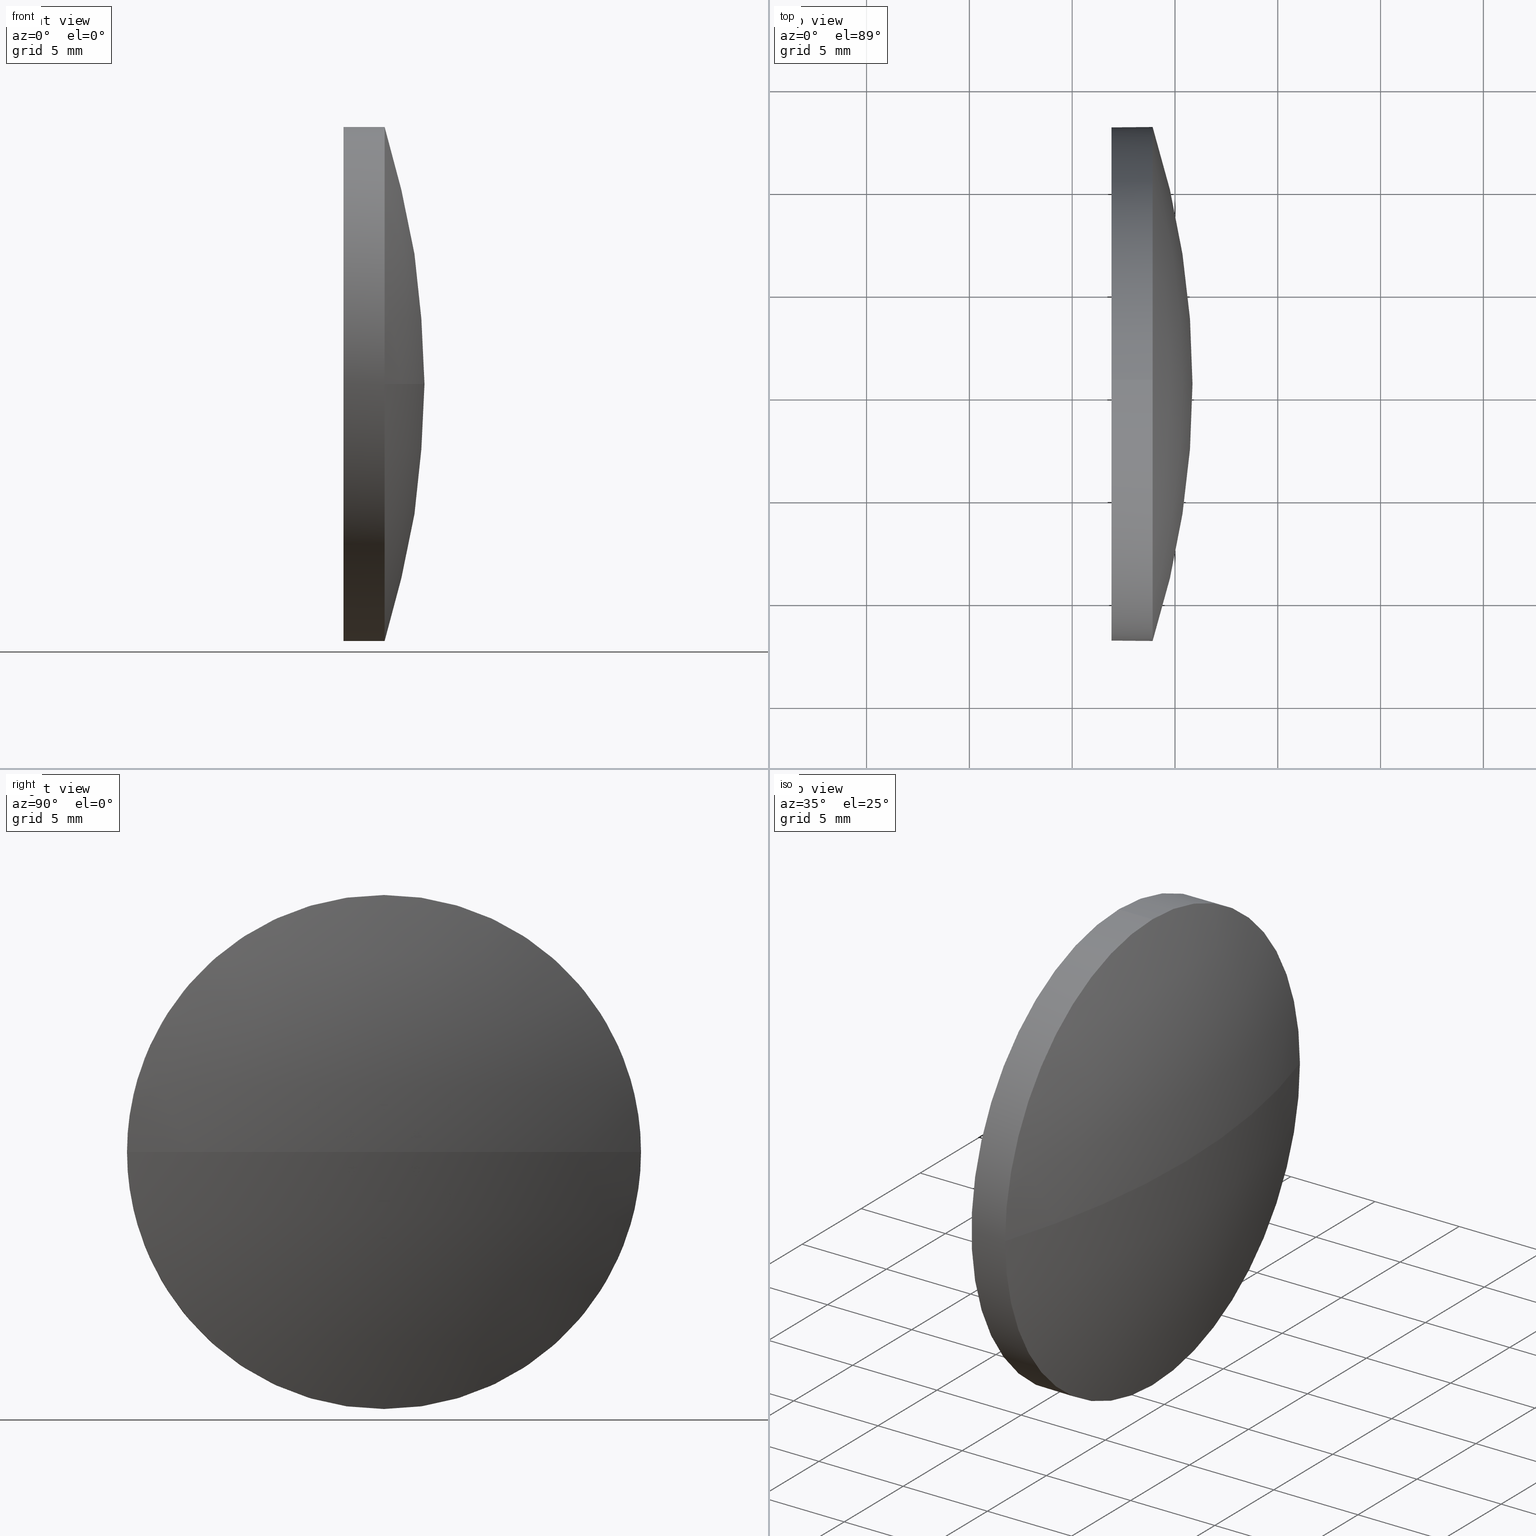
[diagram: canonical four-view strip — front | top / right | iso, engineering-drawing reading convention]
A machine part, canonical four-view strip (front | top / right | iso — engineering-drawing reading convention). The complete STEP part file that produces these views, byte-faithful:
ISO-10303-21;
HEADER;
FILE_DESCRIPTION (( 'STEP AP214' ),
    '1' );
FILE_NAME ('100215.STEP',
    '2019-05-23T09:01:44',
    ( '' ),
    ( '' ),
    'SwSTEP 2.0',
    'SolidWorks 2016',
    '' );
FILE_SCHEMA (( 'AUTOMOTIVE_DESIGN' ));
ENDSEC;

DATA;
#1 = PRODUCT_DEFINITION_CONTEXT ( 'detailed design', #93, 'design' ) ;
#2 = ORIENTED_EDGE ( 'NONE', *, *, #59, .F. ) ;
#3 = DIRECTION ( 'NONE',  ( 0.0000000000000000000, 0.0000000000000000000, 1.000000000000000000 ) ) ;
#4 = AXIS2_PLACEMENT_3D ( 'NONE', #119, #23, #65 ) ;
#5 = DIRECTION ( 'NONE',  ( -1.000000000000000000, -0.0000000000000000000, -0.0000000000000000000 ) ) ;
#6 = CARTESIAN_POINT ( 'NONE',  ( 691.9125718572777300, 125.5543078984230900, 0.0000000000000000000 ) ) ;
#7 = CIRCLE ( 'NONE', #129, 12.49999999999998400 ) ;
#8 = DIRECTION ( 'NONE',  ( 0.0000000000000000000, 0.0000000000000000000, 1.000000000000000000 ) ) ;
#9 = PRODUCT_DEFINITION_FORMATION_WITH_SPECIFIED_SOURCE ( '�κ�', '', #172, .NOT_KNOWN. ) ;
#10 = DIRECTION ( 'NONE',  ( 0.0000000000000000000, 0.0000000000000000000, 1.000000000000000000 ) ) ;
#11 = DIRECTION ( 'NONE',  ( -1.000000000000000000, -0.0000000000000000000, -0.0000000000000000000 ) ) ;
#12 =( GEOMETRIC_REPRESENTATION_CONTEXT ( 3 ) GLOBAL_UNCERTAINTY_ASSIGNED_CONTEXT ( ( #163 ) ) GLOBAL_UNIT_ASSIGNED_CONTEXT ( ( #69, #166, #135 ) ) REPRESENTATION_CONTEXT ( 'NONE', 'WORKASPACE' ) );
#13 = DIRECTION ( 'NONE',  ( -1.000000000000000000, -0.0000000000000000000, -0.0000000000000000000 ) ) ;
#14 = EDGE_CURVE ( 'NONE', #173, #159, #7, .T. ) ;
#15 = CIRCLE ( 'NONE', #98, 12.49999999999998400 ) ;
#16 = CIRCLE ( 'NONE', #99, 12.49999999999998400 ) ;
#17 = LINE ( 'NONE', #90, #165 ) ;
#18 = SURFACE_STYLE_FILL_AREA ( #109 ) ;
#19 = AXIS2_PLACEMENT_3D ( 'NONE', #179, #96, #140 ) ;
#20 = CARTESIAN_POINT ( 'NONE',  ( 693.9125718572777300, 125.5543078984230900, 0.0000000000000000000 ) ) ;
#21 = ORIENTED_EDGE ( 'NONE', *, *, #34, .T. ) ;
#22 = DIRECTION ( 'NONE',  ( -1.000000000000000000, -0.0000000000000000000, -0.0000000000000000000 ) ) ;
#23 = DIRECTION ( 'NONE',  ( 0.0000000000000000000, 1.224646799147353200E-016, -1.000000000000000000 ) ) ;
#24 = ADVANCED_FACE ( 'NONE', ( #46 ), #158, .T. ) ;
#25 = ORIENTED_EDGE ( 'NONE', *, *, #14, .T. ) ;
#26 = CARTESIAN_POINT ( 'NONE',  ( 695.8525718572777800, 125.5543078984230900, 0.0000000000000000000 ) ) ;
#27 = CARTESIAN_POINT ( 'NONE',  ( 693.9125718572777300, 125.5543078984230900, 12.49999999999998400 ) ) ;
#28 = VERTEX_POINT ( 'NONE', #117 ) ;
#29 =( NAMED_UNIT ( * ) PLANE_ANGLE_UNIT ( ) SI_UNIT ( $, .RADIAN. ) );
#30 = SURFACE_SIDE_STYLE ('',( #35 ) ) ;
#31 = STYLED_ITEM ( 'NONE', ( #78 ), #127 ) ;
#32 = ORIENTED_EDGE ( 'NONE', *, *, #85, .F. ) ;
#33 = AXIS2_PLACEMENT_3D ( 'NONE', #56, #11, #68 ) ;
#34 = EDGE_CURVE ( 'NONE', #159, #173, #15, .T. ) ;
#35 = SURFACE_STYLE_FILL_AREA ( #110 ) ;
#36 = ORIENTED_EDGE ( 'NONE', *, *, #45, .T. ) ;
#37 = CARTESIAN_POINT ( 'NONE',  ( 654.6119533005767200, 125.5543078984230900, 0.0000000000000000000 ) ) ;
#38 = CIRCLE ( 'NONE', #33, 12.49999999999998400 ) ;
#39 = CARTESIAN_POINT ( 'NONE',  ( 654.6119533005767200, 125.5543078984230900, 0.0000000000000000000 ) ) ;
#40 = EDGE_LOOP ( 'NONE', ( #21, #25 ) ) ;
#41 = ORIENTED_EDGE ( 'NONE', *, *, #14, .F. ) ;
#42 = APPLICATION_PROTOCOL_DEFINITION ( 'draft international standard', 'automotive_design', 1998, #93 ) ;
#43 = APPLICATION_CONTEXT ( 'automotive_design' ) ;
#44 = SURFACE_STYLE_USAGE ( .BOTH. , #30 ) ;
#45 = EDGE_CURVE ( 'NONE', #130, #173, #132, .T. ) ;
#46 = FACE_OUTER_BOUND ( 'NONE', #150, .T. ) ;
#47 = AXIS2_PLACEMENT_3D ( 'NONE', #167, #152, #52 ) ;
#48 = EDGE_LOOP ( 'NONE', ( #157, #58, #184, #142, #41 ) ) ;
#49 = ADVANCED_FACE ( 'NONE', ( #107 ), #60, .T. ) ;
#50 = EDGE_CURVE ( 'NONE', #112, #159, #17, .T. ) ;
#51 = PRODUCT_DEFINITION ( 'δ֪', '', #9, #1 ) ;
#52 = DIRECTION ( 'NONE',  ( 0.0000000000000000000, 0.0000000000000000000, 1.000000000000000000 ) ) ;
#53 = DIRECTION ( 'NONE',  ( 0.0000000000000000000, 0.0000000000000000000, -1.000000000000000000 ) ) ;
#54 = AXIS2_PLACEMENT_3D ( 'NONE', #121, #13, #123 ) ;
#55 =( LENGTH_UNIT ( ) NAMED_UNIT ( * ) SI_UNIT ( .MILLI., .METRE. ) );
#56 = CARTESIAN_POINT ( 'NONE',  ( 693.9125718572777300, 125.5543078984230900, 0.0000000000000000000 ) ) ;
#57 = MECHANICAL_DESIGN_GEOMETRIC_PRESENTATION_REPRESENTATION (  '', ( #31 ), #164 ) ;
#58 = ORIENTED_EDGE ( 'NONE', *, *, #85, .T. ) ;
#59 = EDGE_CURVE ( 'NONE', #178, #101, #124, .T. ) ;
#60 = CYLINDRICAL_SURFACE ( 'NONE', #151, 12.49999999999998400 ) ;
#61 = EDGE_CURVE ( 'NONE', #178, #28, #115, .T. ) ;
#62 = CLOSED_SHELL ( 'NONE', ( #49, #24, #89, #144, #145 ) ) ;
#63 = DIRECTION ( 'NONE',  ( -1.000000000000000000, -0.0000000000000000000, -0.0000000000000000000 ) ) ;
#64 = UNCERTAINTY_MEASURE_WITH_UNIT (LENGTH_MEASURE( 1.000000000000000100E-005 ), #95, 'distance_accuracy_value', 'NONE');
#65 = DIRECTION ( 'NONE',  ( 0.0000000000000000000, 1.000000000000000000, 1.224646799147353200E-016 ) ) ;
#66 = AXIS2_PLACEMENT_3D ( 'NONE', #20, #71, #10 ) ;
#67 = CARTESIAN_POINT ( 'NONE',  ( 691.9125718572777300, 125.5543078984230900, 0.0000000000000000000 ) ) ;
#68 = DIRECTION ( 'NONE',  ( 0.0000000000000000000, 0.0000000000000000000, 1.000000000000000000 ) ) ;
#69 =( LENGTH_UNIT ( ) NAMED_UNIT ( * ) SI_UNIT ( .MILLI., .METRE. ) );
#70 = FACE_OUTER_BOUND ( 'NONE', #113, .T. ) ;
#71 = DIRECTION ( 'NONE',  ( -1.000000000000000000, -0.0000000000000000000, -0.0000000000000000000 ) ) ;
#72 = EDGE_CURVE ( 'NONE', #101, #130, #100, .T. ) ;
#73 = COLOUR_RGB ( '',1.000000000000000000, 1.000000000000000000, 1.000000000000000000 ) ;
#74 = EDGE_LOOP ( 'NONE', ( #141, #36, #106, #171, #76 ) ) ;
#75 = EDGE_CURVE ( 'NONE', #112, #101, #111, .T. ) ;
#76 = ORIENTED_EDGE ( 'NONE', *, *, #75, .T. ) ;
#77 = PRESENTATION_LAYER_ASSIGNMENT (  '', '', ( #31 ) ) ;
#78 = PRESENTATION_STYLE_ASSIGNMENT (( #155 ) ) ;
#79 = DIRECTION ( 'NONE',  ( 1.000000000000000000, 0.0000000000000000000, 0.0000000000000000000 ) ) ;
#80 = ORIENTED_EDGE ( 'NONE', *, *, #72, .F. ) ;
#81 = FILL_AREA_STYLE_COLOUR ( '', #94 ) ;
#82 = CARTESIAN_POINT ( 'NONE',  ( 691.9125718572777300, 125.5543078984230900, 12.49999999999998400 ) ) ;
#83 = AXIS2_PLACEMENT_3D ( 'NONE', #6, #79, #53 ) ;
#84 = CARTESIAN_POINT ( 'NONE',  ( 691.9125718572777300, 125.5543078984230900, -12.49999999999998400 ) ) ;
#85 = EDGE_CURVE ( 'NONE', #130, #28, #38, .T. ) ;
#86 = ORIENTED_EDGE ( 'NONE', *, *, #61, .F. ) ;
#87 = FACE_OUTER_BOUND ( 'NONE', #40, .T. ) ;
#88 = ORIENTED_EDGE ( 'NONE', *, *, #156, .F. ) ;
#89 = ADVANCED_FACE ( 'NONE', ( #70 ), #185, .T. ) ;
#90 = CARTESIAN_POINT ( 'NONE',  ( 689.8834642788407300, 125.5543078984230900, 12.49999999999998400 ) ) ;
#91 = AXIS2_PLACEMENT_3D ( 'NONE', #146, #161, #102 ) ;
#92 = ORIENTED_EDGE ( 'NONE', *, *, #61, .T. ) ;
#93 = APPLICATION_CONTEXT ( 'automotive_design' ) ;
#94 = COLOUR_RGB ( '',1.000000000000000000, 1.000000000000000000, 1.000000000000000000 ) ;
#95 =( LENGTH_UNIT ( ) NAMED_UNIT ( * ) SI_UNIT ( .MILLI., .METRE. ) );
#96 = DIRECTION ( 'NONE',  ( 0.0000000000000000000, 0.0000000000000000000, 1.000000000000000000 ) ) ;
#97 = DIRECTION ( 'NONE',  ( -0.0000000000000000000, 0.0000000000000000000, -1.000000000000000000 ) ) ;
#98 = AXIS2_PLACEMENT_3D ( 'NONE', #147, #22, #3 ) ;
#99 = AXIS2_PLACEMENT_3D ( 'NONE', #137, #154, #8 ) ;
#100 = CIRCLE ( 'NONE', #66, 12.49999999999998400 ) ;
#101 = VERTEX_POINT ( 'NONE', #170 ) ;
#102 = DIRECTION ( 'NONE',  ( 0.0000000000000000000, 1.000000000000000000, 0.0000000000000000000 ) ) ;
#103 = DIRECTION ( 'NONE',  ( 0.0000000000000000000, 0.0000000000000000000, 1.000000000000000000 ) ) ;
#104 = DIRECTION ( 'NONE',  ( -0.0000000000000000000, 0.0000000000000000000, 1.000000000000000000 ) ) ;
#105 =( NAMED_UNIT ( * ) SI_UNIT ( $, .STERADIAN. ) SOLID_ANGLE_UNIT ( ) );
#106 = ORIENTED_EDGE ( 'NONE', *, *, #34, .F. ) ;
#107 = FACE_OUTER_BOUND ( 'NONE', #74, .T. ) ;
#108 = STYLED_ITEM ( 'NONE', ( #133 ), #182 ) ;
#109 = FILL_AREA_STYLE ('',( #81 ) ) ;
#110 = FILL_AREA_STYLE ('',( #138 ) ) ;
#111 = CIRCLE ( 'NONE', #47, 12.49999999999998400 ) ;
#112 = VERTEX_POINT ( 'NONE', #27 ) ;
#113 = EDGE_LOOP ( 'NONE', ( #86, #120, #136, #88 ) ) ;
#114 = UNCERTAINTY_MEASURE_WITH_UNIT (LENGTH_MEASURE( 1.000000000000000100E-005 ), #55, 'distance_accuracy_value', 'NONE');
#115 = CIRCLE ( 'NONE', #4, 41.24061855670099400 ) ;
#116 = PRESENTATION_LAYER_ASSIGNMENT (  '', '', ( #108 ) ) ;
#117 = CARTESIAN_POINT ( 'NONE',  ( 693.9125718572777300, 113.0543078984230600, -1.530808498934194300E-015 ) ) ;
#118 = CARTESIAN_POINT ( 'NONE',  ( 689.8834642788407300, 125.5543078984230900, 0.0000000000000000000 ) ) ;
#119 = CARTESIAN_POINT ( 'NONE',  ( 654.6119533005767200, 125.5543078984230900, 0.0000000000000000000 ) ) ;
#120 = ORIENTED_EDGE ( 'NONE', *, *, #59, .T. ) ;
#121 = CARTESIAN_POINT ( 'NONE',  ( 689.8834642788407300, 125.5543078984230900, 0.0000000000000000000 ) ) ;
#122 = AXIS2_PLACEMENT_3D ( 'NONE', #37, #104, #174 ) ;
#123 = DIRECTION ( 'NONE',  ( 0.0000000000000000000, 0.0000000000000000000, 1.000000000000000000 ) ) ;
#124 = CIRCLE ( 'NONE', #122, 41.24061855670102300 ) ;
#125 = PRODUCT_DEFINITION_SHAPE ( 'NONE', 'NONE',  #51 ) ;
#126 = CYLINDRICAL_SURFACE ( 'NONE', #54, 12.49999999999998400 ) ;
#127 = MANIFOLD_SOLID_BREP ( '��ת1', #62 ) ;
#128 = PRODUCT_RELATED_PRODUCT_CATEGORY ( 'part', '', ( #172 ) ) ;
#129 = AXIS2_PLACEMENT_3D ( 'NONE', #67, #148, #103 ) ;
#130 = VERTEX_POINT ( 'NONE', #177 ) ;
#131 = CARTESIAN_POINT ( 'NONE',  ( 689.8834642788407300, 125.5543078984230900, -12.49999999999998400 ) ) ;
#132 = LINE ( 'NONE', #131, #143 ) ;
#133 = PRESENTATION_STYLE_ASSIGNMENT (( #44 ) ) ;
#134 = DIRECTION ( 'NONE',  ( 0.0000000000000000000, 1.000000000000000000, 0.0000000000000000000 ) ) ;
#135 =( NAMED_UNIT ( * ) SI_UNIT ( $, .STERADIAN. ) SOLID_ANGLE_UNIT ( ) );
#136 = ORIENTED_EDGE ( 'NONE', *, *, #75, .F. ) ;
#137 = CARTESIAN_POINT ( 'NONE',  ( 693.9125718572777300, 125.5543078984230900, 0.0000000000000000000 ) ) ;
#138 = FILL_AREA_STYLE_COLOUR ( '', #73 ) ;
#139 = SHAPE_DEFINITION_REPRESENTATION ( #125, #182 ) ;
#140 = DIRECTION ( 'NONE',  ( 1.000000000000000000, 0.0000000000000000000, 0.0000000000000000000 ) ) ;
#141 = ORIENTED_EDGE ( 'NONE', *, *, #72, .T. ) ;
#142 = ORIENTED_EDGE ( 'NONE', *, *, #50, .T. ) ;
#143 = VECTOR ( 'NONE', #5, 1000.000000000000000 ) ;
#144 = ADVANCED_FACE ( 'NONE', ( #183 ), #126, .T. ) ;
#145 = ADVANCED_FACE ( 'NONE', ( #87 ), #180, .F. ) ;
#146 = CARTESIAN_POINT ( 'NONE',  ( 654.6119533005767200, 125.5543078984230900, 0.0000000000000000000 ) ) ;
#147 = CARTESIAN_POINT ( 'NONE',  ( 691.9125718572777300, 125.5543078984230900, 0.0000000000000000000 ) ) ;
#148 = DIRECTION ( 'NONE',  ( -1.000000000000000000, -0.0000000000000000000, -0.0000000000000000000 ) ) ;
#149 =( NAMED_UNIT ( * ) SI_UNIT ( $, .STERADIAN. ) SOLID_ANGLE_UNIT ( ) );
#150 = EDGE_LOOP ( 'NONE', ( #2, #92, #32, #80 ) ) ;
#151 = AXIS2_PLACEMENT_3D ( 'NONE', #118, #63, #162 ) ;
#152 = DIRECTION ( 'NONE',  ( -1.000000000000000000, -0.0000000000000000000, -0.0000000000000000000 ) ) ;
#153 = SURFACE_SIDE_STYLE ('',( #18 ) ) ;
#154 = DIRECTION ( 'NONE',  ( -1.000000000000000000, -0.0000000000000000000, -0.0000000000000000000 ) ) ;
#155 = SURFACE_STYLE_USAGE ( .BOTH. , #153 ) ;
#156 = EDGE_CURVE ( 'NONE', #28, #112, #16, .T. ) ;
#157 = ORIENTED_EDGE ( 'NONE', *, *, #45, .F. ) ;
#158 = SPHERICAL_SURFACE ( 'NONE', #91, 41.24061855670099400 ) ;
#159 = VERTEX_POINT ( 'NONE', #82 ) ;
#160 =( GEOMETRIC_REPRESENTATION_CONTEXT ( 3 ) GLOBAL_UNCERTAINTY_ASSIGNED_CONTEXT ( ( #114 ) ) GLOBAL_UNIT_ASSIGNED_CONTEXT ( ( #55, #168, #149 ) ) REPRESENTATION_CONTEXT ( 'NONE', 'WORKASPACE' ) );
#161 = DIRECTION ( 'NONE',  ( -0.0000000000000000000, 0.0000000000000000000, -1.000000000000000000 ) ) ;
#162 = DIRECTION ( 'NONE',  ( 0.0000000000000000000, 0.0000000000000000000, 1.000000000000000000 ) ) ;
#163 = UNCERTAINTY_MEASURE_WITH_UNIT (LENGTH_MEASURE( 1.000000000000000100E-005 ), #69, 'distance_accuracy_value', 'NONE');
#164 =( GEOMETRIC_REPRESENTATION_CONTEXT ( 3 ) GLOBAL_UNCERTAINTY_ASSIGNED_CONTEXT ( ( #64 ) ) GLOBAL_UNIT_ASSIGNED_CONTEXT ( ( #95, #29, #105 ) ) REPRESENTATION_CONTEXT ( 'NONE', 'WORKASPACE' ) );
#165 = VECTOR ( 'NONE', #175, 1000.000000000000000 ) ;
#166 =( NAMED_UNIT ( * ) PLANE_ANGLE_UNIT ( ) SI_UNIT ( $, .RADIAN. ) );
#167 = CARTESIAN_POINT ( 'NONE',  ( 693.9125718572777300, 125.5543078984230900, 0.0000000000000000000 ) ) ;
#168 =( NAMED_UNIT ( * ) PLANE_ANGLE_UNIT ( ) SI_UNIT ( $, .RADIAN. ) );
#169 = MECHANICAL_DESIGN_GEOMETRIC_PRESENTATION_REPRESENTATION (  '', ( #108 ), #12 ) ;
#170 = CARTESIAN_POINT ( 'NONE',  ( 693.9125718572777300, 138.0543078984231000, 0.0000000000000000000 ) ) ;
#171 = ORIENTED_EDGE ( 'NONE', *, *, #50, .F. ) ;
#172 = PRODUCT ( '100215', '100215', '', ( #176 ) ) ;
#173 = VERTEX_POINT ( 'NONE', #84 ) ;
#174 = DIRECTION ( 'NONE',  ( 1.000000000000000000, 0.0000000000000000000, 0.0000000000000000000 ) ) ;
#175 = DIRECTION ( 'NONE',  ( -1.000000000000000000, -0.0000000000000000000, -0.0000000000000000000 ) ) ;
#176 = PRODUCT_CONTEXT ( 'NONE', #43, 'mechanical' ) ;
#177 = CARTESIAN_POINT ( 'NONE',  ( 693.9125718572777300, 125.5543078984230900, -12.49999999999998400 ) ) ;
#178 = VERTEX_POINT ( 'NONE', #26 ) ;
#179 = CARTESIAN_POINT ( 'NONE',  ( 0.0000000000000000000, 0.0000000000000000000, 0.0000000000000000000 ) ) ;
#180 = PLANE ( 'NONE',  #83 ) ;
#181 = APPLICATION_PROTOCOL_DEFINITION ( 'draft international standard', 'automotive_design', 1998, #43 ) ;
#182 = ADVANCED_BREP_SHAPE_REPRESENTATION ( '100215', ( #127, #19 ), #160 ) ;
#183 = FACE_OUTER_BOUND ( 'NONE', #48, .T. ) ;
#184 = ORIENTED_EDGE ( 'NONE', *, *, #156, .T. ) ;
#185 = SPHERICAL_SURFACE ( 'NONE', #186, 41.24061855670099400 ) ;
#186 = AXIS2_PLACEMENT_3D ( 'NONE', #39, #97, #134 ) ;
ENDSEC;
END-ISO-10303-21;
